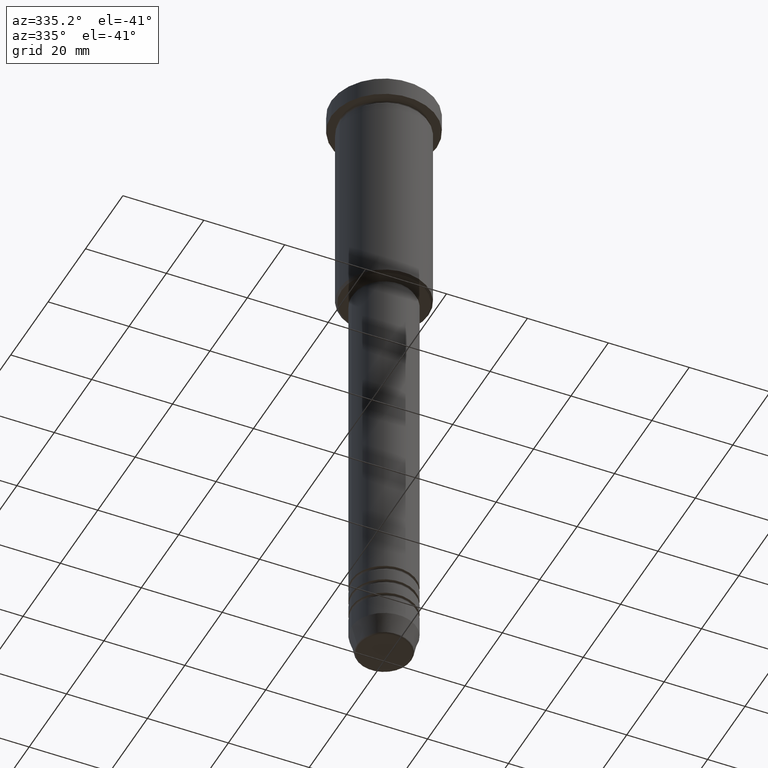
[diagram: clean part render]
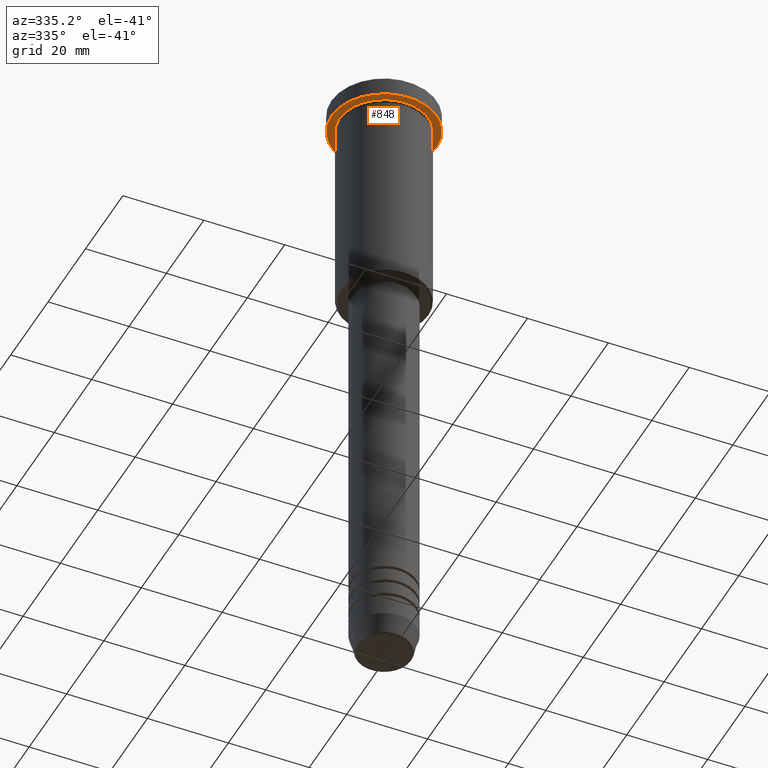
[diagram: same view with one face highlighted and labeled with its STEP entity id]
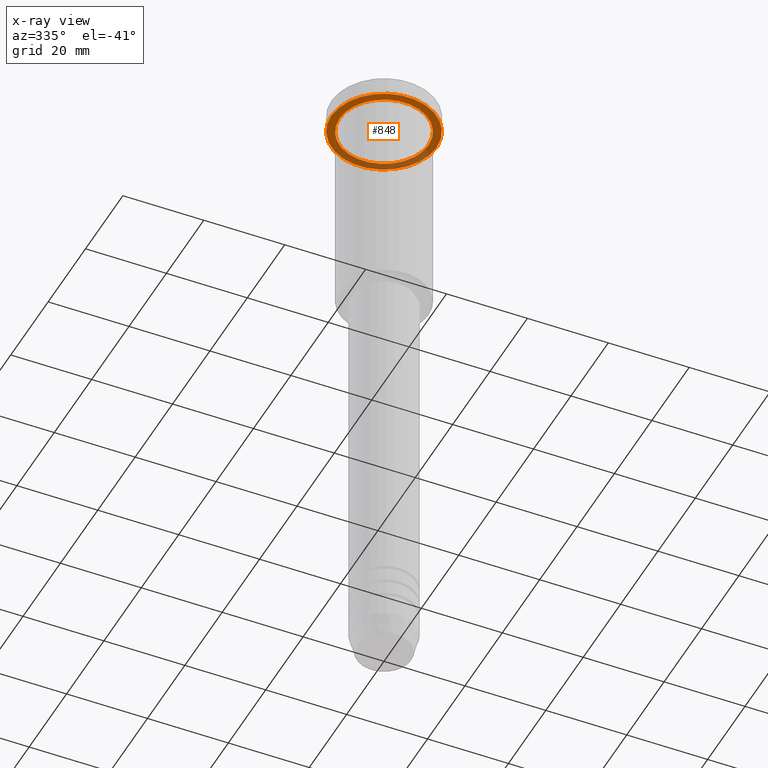
[diagram: x-ray of the same camera — body ghosted, the highlighted face saturated]
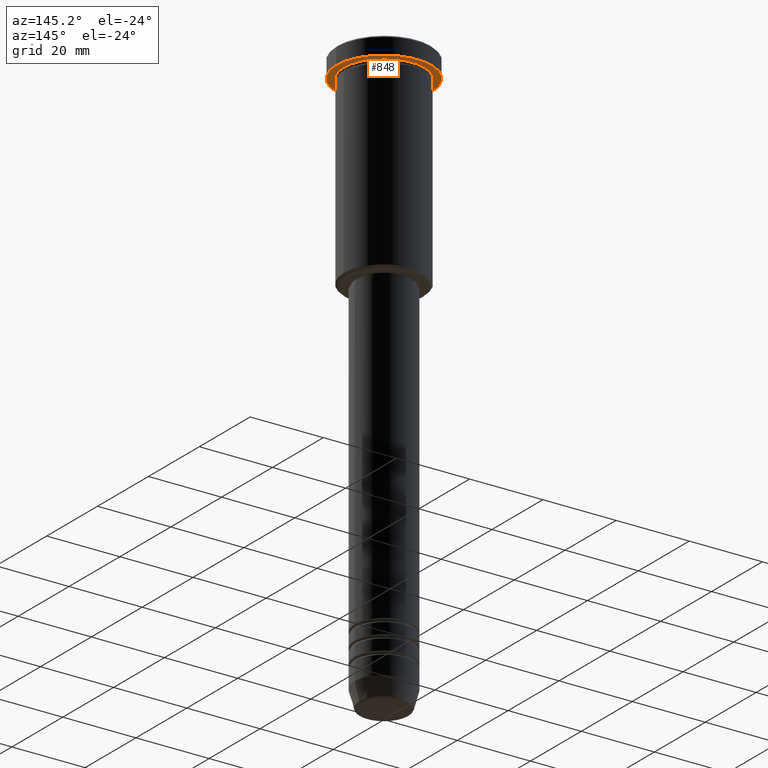
[diagram: same view with one face highlighted and labeled with its STEP entity id]
A machine part, auxiliary view. The second image highlights one B-rep face of the part: STEP entity #848.
The next image is the same camera in x-ray: the body ghosted, the highlighted face saturated — about 31% of this face is hidden behind the body in this view.
A second angle (auxiliary view) of the same face is appended — the face is thin or edge-on in the first view.
In plain terms, the highlighted planar face has unit normal (0, 0, -1).
Its self-contained STEP definition (entity closure, byte-faithful):
#14 = CARTESIAN_POINT ( 'NONE',  ( 0.000000000000000000, 0.000000000000000000, -5.000000000000000000 ) ) ;
#16 = VERTEX_POINT ( 'NONE', #807 ) ;
#30 = DIRECTION ( 'NONE',  ( -1.000000000000000000, 0.000000000000000000, 0.000000000000000000 ) ) ;
#42 = EDGE_CURVE ( 'NONE', #16, #711, #339, .T. ) ;
#69 = DIRECTION ( 'NONE',  ( 0.000000000000000000, 0.000000000000000000, -1.000000000000000000 ) ) ;
#76 = AXIS2_PLACEMENT_3D ( 'NONE', #783, #69, #789 ) ;
#116 = DIRECTION ( 'NONE',  ( 1.000000000000000000, 0.000000000000000000, 0.000000000000000000 ) ) ;
#142 = ORIENTED_EDGE ( 'NONE', *, *, #42, .T. ) ;
#148 = ORIENTED_EDGE ( 'NONE', *, *, #513, .F. ) ;
#210 = DIRECTION ( 'NONE',  ( -0.000000000000000000, -0.000000000000000000, 1.000000000000000000 ) ) ;
#230 = VERTEX_POINT ( 'NONE', #668 ) ;
#294 = DIRECTION ( 'NONE',  ( 1.000000000000000000, 0.000000000000000000, 0.000000000000000000 ) ) ;
#339 = CIRCLE ( 'NONE', #1116, 11.00000000000000000 ) ;
#344 = FACE_BOUND ( 'NONE', #1094, .T. ) ;
#366 = CIRCLE ( 'NONE', #455, 13.00000000000000000 ) ;
#375 = DIRECTION ( 'NONE',  ( -0.000000000000000000, -0.000000000000000000, 1.000000000000000000 ) ) ;
#379 = DIRECTION ( 'NONE',  ( -0.000000000000000000, -0.000000000000000000, 1.000000000000000000 ) ) ;
#391 = ORIENTED_EDGE ( 'NONE', *, *, #926, .T. ) ;
#414 = AXIS2_PLACEMENT_3D ( 'NONE', #733, #210, #464 ) ;
#452 = AXIS2_PLACEMENT_3D ( 'NONE', #556, #375, #294 ) ;
#455 = AXIS2_PLACEMENT_3D ( 'NONE', #821, #558, #116 ) ;
#464 = DIRECTION ( 'NONE',  ( -1.000000000000000000, 0.000000000000000000, 0.000000000000000000 ) ) ;
#504 = CIRCLE ( 'NONE', #452, 13.00000000000000000 ) ;
#513 = EDGE_CURVE ( 'NONE', #1174, #230, #504, .T. ) ;
#556 = CARTESIAN_POINT ( 'NONE',  ( 0.000000000000000000, 0.000000000000000000, -5.000000000000000000 ) ) ;
#558 = DIRECTION ( 'NONE',  ( -0.000000000000000000, -0.000000000000000000, 1.000000000000000000 ) ) ;
#610 = FACE_OUTER_BOUND ( 'NONE', #867, .T. ) ;
#668 = CARTESIAN_POINT ( 'NONE',  ( 13.00000000000000000, 0.000000000000000000, -5.000000000000000000 ) ) ;
#705 = ORIENTED_EDGE ( 'NONE', *, *, #956, .F. ) ;
#711 = VERTEX_POINT ( 'NONE', #853 ) ;
#733 = CARTESIAN_POINT ( 'NONE',  ( 0.000000000000000000, 0.000000000000000000, -5.000000000000000000 ) ) ;
#783 = CARTESIAN_POINT ( 'NONE',  ( 0.000000000000000000, 13.00000000000000000, -5.000000000000000000 ) ) ;
#789 = DIRECTION ( 'NONE',  ( -1.000000000000000000, 0.000000000000000000, -0.000000000000000000 ) ) ;
#807 = CARTESIAN_POINT ( 'NONE',  ( -11.00000000000000000, 0.000000000000000000, -4.999999999999999112 ) ) ;
#821 = CARTESIAN_POINT ( 'NONE',  ( 0.000000000000000000, 0.000000000000000000, -5.000000000000000000 ) ) ;
#848 = ADVANCED_FACE ( 'NONE', ( #344, #610 ), #1092, .T. ) ;
#853 = CARTESIAN_POINT ( 'NONE',  ( 11.00000000000000000, 1.347111479062088405E-15, -4.999999999999999112 ) ) ;
#867 = EDGE_LOOP ( 'NONE', ( #705, #148 ) ) ;
#926 = EDGE_CURVE ( 'NONE', #711, #16, #933, .T. ) ;
#933 = CIRCLE ( 'NONE', #414, 11.00000000000000000 ) ;
#946 = CARTESIAN_POINT ( 'NONE',  ( -13.00000000000000000, 1.592040838891559095E-15, -5.000000000000000000 ) ) ;
#956 = EDGE_CURVE ( 'NONE', #230, #1174, #366, .T. ) ;
#1092 = PLANE ( 'NONE',  #76 ) ;
#1094 = EDGE_LOOP ( 'NONE', ( #142, #391 ) ) ;
#1116 = AXIS2_PLACEMENT_3D ( 'NONE', #14, #379, #30 ) ;
#1174 = VERTEX_POINT ( 'NONE', #946 ) ;